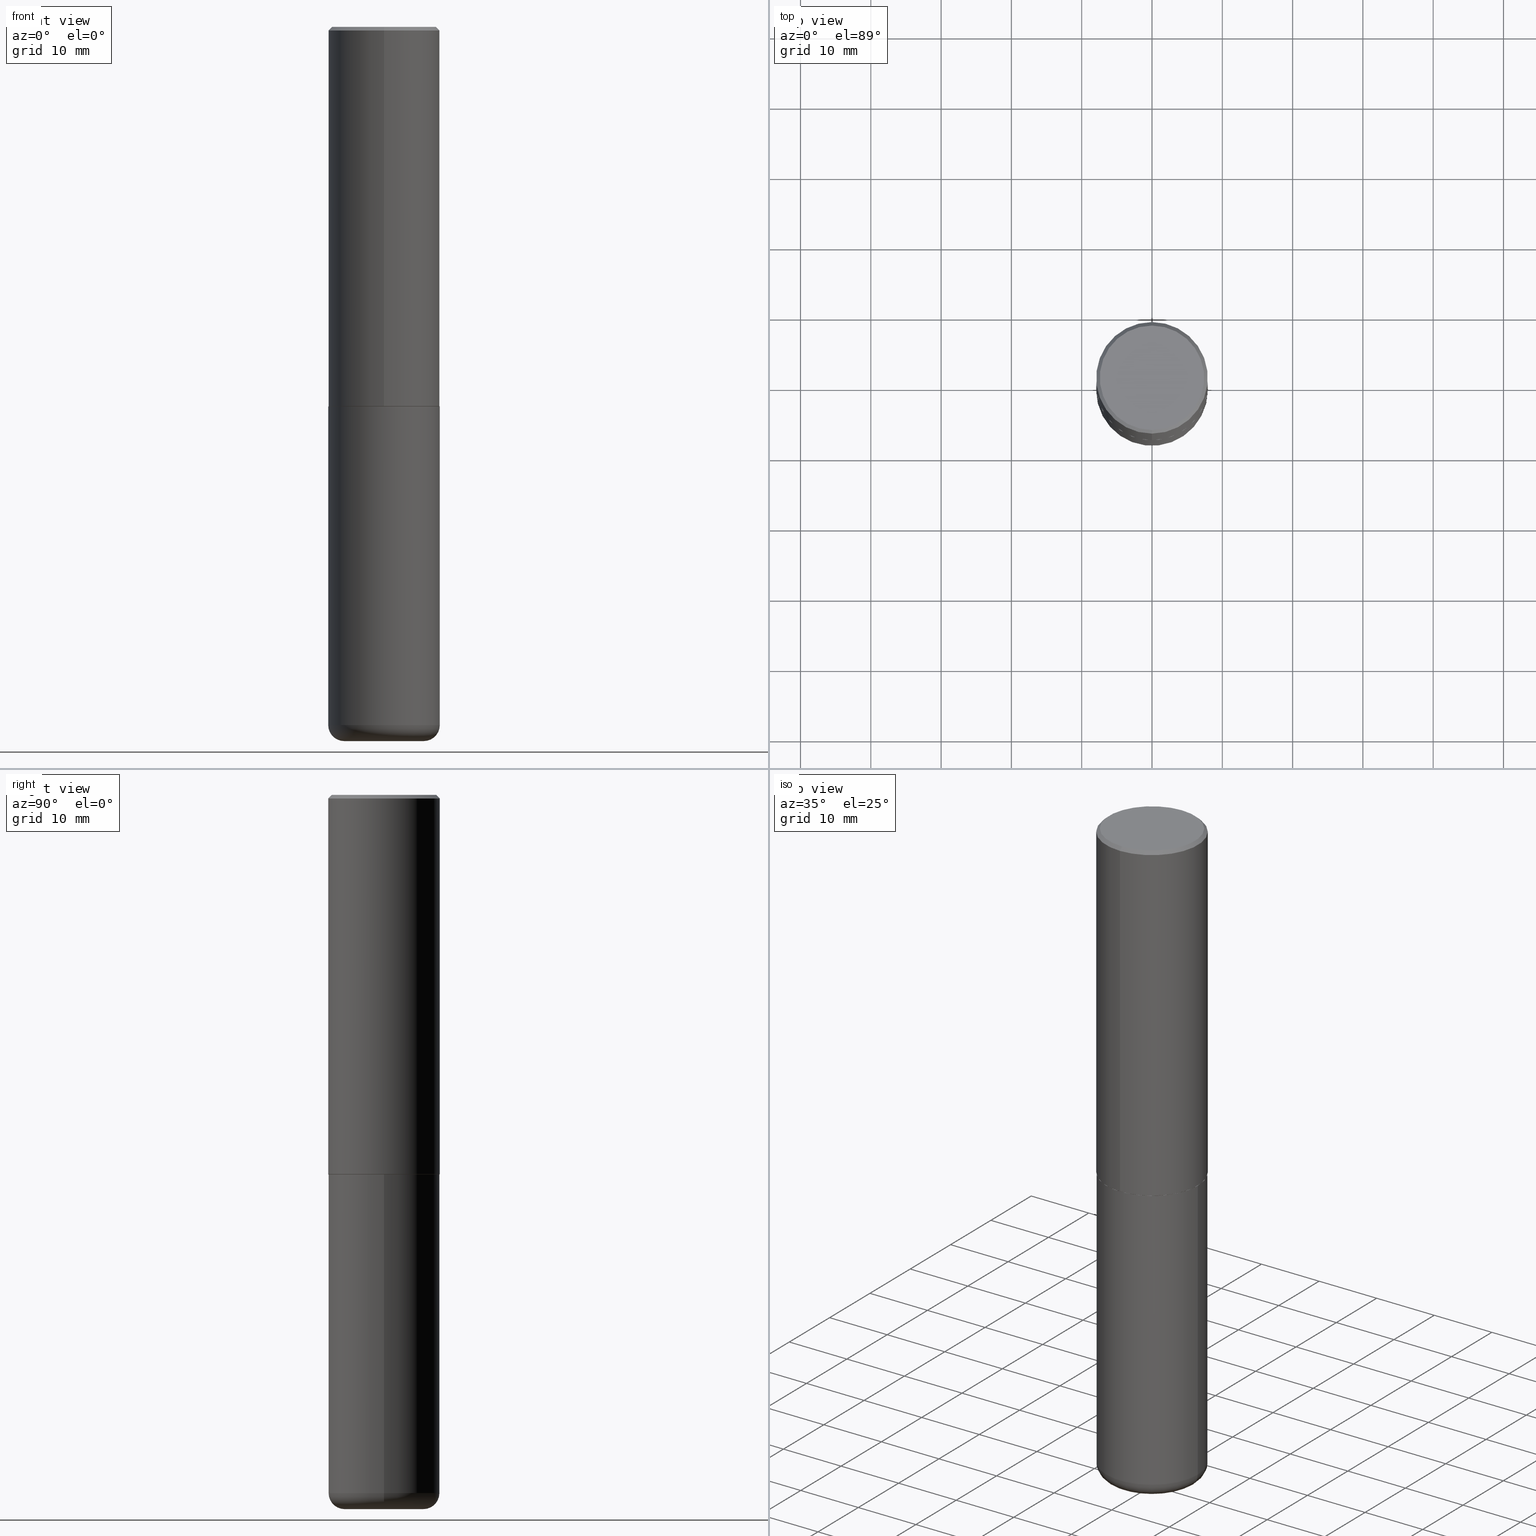
[diagram: canonical four-view strip — front | top / right | iso, engineering-drawing reading convention]
A machine part, canonical four-view strip (front | top / right | iso — engineering-drawing reading convention). The complete STEP part file that produces these views, byte-faithful:
ISO-10303-21;
HEADER;
FILE_DESCRIPTION (( 'STEP AP203' ),
    '1' );
FILE_NAME ('37604.STEP',
    '2024-03-02T05:38:12',
    ( '' ),
    ( '' ),
    'SwSTEP 2.0',
    'SolidWorks 2023',
    '' );
FILE_SCHEMA (( 'CONFIG_CONTROL_DESIGN' ));
ENDSEC;

DATA;
#1 = CARTESIAN_POINT ( 'NONE',  ( -2.150299018297948745E-46, 3.071607443834507134E-32, 8.795209847407834549E-18 ) ) ;
#2 = AXIS2_PLACEMENT_3D ( 'NONE', #319, #168, #28 ) ;
#3 = EDGE_CURVE ( 'NONE', #340, #366, #215, .T. ) ;
#4 = PERSON_AND_ORGANIZATION ( #185, #129 ) ;
#5 = ORIENTED_EDGE ( 'NONE', *, *, #312, .T. ) ;
#6 = CARTESIAN_POINT ( 'NONE',  ( -0.2225000000000000033, -1.190810687696637377E-14, -4.000000000000000000 ) ) ;
#7 = EDGE_CURVE ( 'NONE', #278, #22, #373, .T. ) ;
#8 = AXIS2_PLACEMENT_3D ( 'NONE', #229, #231, #139 ) ;
#9 =( GEOMETRIC_REPRESENTATION_CONTEXT ( 3 ) GLOBAL_UNCERTAINTY_ASSIGNED_CONTEXT ( ( #317 ) ) GLOBAL_UNIT_ASSIGNED_CONTEXT ( ( #188, #416, #346 ) ) REPRESENTATION_CONTEXT ( 'NONE', 'WORKASPACE' ) );
#10 = DATE_AND_TIME ( #367, #51 ) ;
#11 = CARTESIAN_POINT ( 'NONE',  ( 0.2225000000000000033, -1.551963455115777730E-14, -4.000000000000000000 ) ) ;
#12 = FACE_OUTER_BOUND ( 'NONE', #245, .T. ) ;
#13 = DIRECTION ( 'NONE',  ( 1.000000000000000000, -6.982962677686273810E-15, 0.000000000000000000 ) ) ;
#14 = FACE_OUTER_BOUND ( 'NONE', #356, .T. ) ;
#15 = CARTESIAN_POINT ( 'NONE',  ( -2.075300644325887493E-15, -0.2924999999999999822, 1.030311686326234990E-15 ) ) ;
#16 = AXIS2_PLACEMENT_3D ( 'NONE', #44, #294, #108 ) ;
#17 = CARTESIAN_POINT ( 'NONE',  ( 0.000000000000000000, 0.000000000000000000, 0.000000000000000000 ) ) ;
#18 = EDGE_CURVE ( 'NONE', #53, #85, #376, .T. ) ;
#19 = ORIENTED_EDGE ( 'NONE', *, *, #157, .F. ) ;
#20 = ORIENTED_EDGE ( 'NONE', *, *, #18, .F. ) ;
#21 = EDGE_CURVE ( 'NONE', #214, #342, #233, .T. ) ;
#22 = VERTEX_POINT ( 'NONE', #301 ) ;
#23 = CC_DESIGN_APPROVAL ( #246, ( #60 ) ) ;
#24 = DESIGN_CONTEXT ( 'detailed design', #374, 'design' ) ;
#25 = DIRECTION ( 'NONE',  ( 1.000000000000000000, -6.982962677686264344E-15, 4.883557194083112340E-29 ) ) ;
#26 = CARTESIAN_POINT ( 'NONE',  ( 2.042516583223232540E-15, 0.2924999999999999822, -1.017118871555123169E-15 ) ) ;
#27 = VECTOR ( 'NONE', #263, 39.37007874015748143 ) ;
#28 = DIRECTION ( 'NONE',  ( 1.000000000000000000, -6.982962677686265133E-15, 0.000000000000000000 ) ) ;
#29 = CC_DESIGN_APPROVAL ( #66, ( #225 ) ) ;
#30 = DIRECTION ( 'NONE',  ( -6.982962677686265133E-15, -1.000000000000000000, 3.496765431890256920E-15 ) ) ;
#31 = CALENDAR_DATE ( 2024, 2, 3 ) ;
#32 = LINE ( 'NONE', #101, #134 ) ;
#33 = SECURITY_CLASSIFICATION_LEVEL ( 'unclassified' ) ;
#34 = DIRECTION ( 'NONE',  ( -6.982962677686265133E-15, -1.000000000000000000, 3.492364022149836358E-15 ) ) ;
#35 = CC_DESIGN_DATE_AND_TIME_ASSIGNMENT ( #407, #93, ( #414 ) ) ;
#36 = CARTESIAN_POINT ( 'NONE',  ( -2.175192874099219874E-15, -0.3115000000000074376, -2.124999999999998668 ) ) ;
#37 = AXIS2_PLACEMENT_3D ( 'NONE', #86, #153, #50 ) ;
#38 = CARTESIAN_POINT ( 'NONE',  ( 5.195311417418712329E-29, -7.421273547068401324E-15, -2.124999999999999556 ) ) ;
#39 = ORIENTED_EDGE ( 'NONE', *, *, #316, .F. ) ;
#40 = DIRECTION ( 'NONE',  ( 1.000000000000000000, -6.982962677686266711E-15, 4.876176775795936353E-29 ) ) ;
#41 = CARTESIAN_POINT ( 'NONE',  ( 9.781875224740546387E-29, -1.396592535537258233E-14, -4.000000000000000000 ) ) ;
#42 = APPROVAL_PERSON_ORGANIZATION ( #338, #45, #218 ) ;
#43 = FACE_OUTER_BOUND ( 'NONE', #159, .T. ) ;
#44 = CARTESIAN_POINT ( 'NONE',  ( 5.195311417418712329E-29, -7.421273547068401324E-15, -2.124999999999999556 ) ) ;
#45 = APPROVAL ( #91, 'UNSPECIFIED' ) ;
#46 =( LENGTH_UNIT ( ) NAMED_UNIT ( * ) SI_UNIT ( $, .METRE. ) );
#47 = DIRECTION ( 'NONE',  ( -6.982962677686265133E-15, -1.000000000000000000, 3.492364022149836753E-15 ) ) ;
#48 = ORIENTED_EDGE ( 'NONE', *, *, #269, .F. ) ;
#49 = CIRCLE ( 'NONE', #16, 0.3114999999999999991 ) ;
#50 = DIRECTION ( 'NONE',  ( 1.000000000000000000, -6.982962677686264344E-15, 4.883557194083112340E-29 ) ) ;
#51 = LOCAL_TIME ( 0, 38, 12.00000000000000000, #186 ) ;
#52 = ORIENTED_EDGE ( 'NONE', *, *, #202, .F. ) ;
#53 = VERTEX_POINT ( 'NONE', #15 ) ;
#54 = CARTESIAN_POINT ( 'NONE',  ( 9.781875224740546387E-29, -1.396592535537258233E-14, -4.000000000000000000 ) ) ;
#55 = EDGE_CURVE ( 'NONE', #276, #22, #151, .T. ) ;
#56 = ORIENTED_EDGE ( 'NONE', *, *, #193, .T. ) ;
#57 = DIRECTION ( 'NONE',  ( -2.445468806185136597E-29, 3.491481338843145583E-15, 1.000000000000000000 ) ) ;
#58 = EDGE_LOOP ( 'NONE', ( #20, #252, #146, #377 ) ) ;
#59 = AXIS2_PLACEMENT_3D ( 'NONE', #17, #82, #152 ) ;
#60 = PRODUCT_DEFINITION_FORMATION_WITH_SPECIFIED_SOURCE ( 'ANY', '', #330, .NOT_KNOWN. ) ;
#61 = ORIENTED_EDGE ( 'NONE', *, *, #243, .F. ) ;
#62 = DIRECTION ( 'NONE',  ( -2.445468806185136877E-29, 3.491481338843145188E-15, 1.000000000000000000 ) ) ;
#63 = ORIENTED_EDGE ( 'NONE', *, *, #95, .T. ) ;
#64 = FACE_OUTER_BOUND ( 'NONE', #92, .T. ) ;
#65 = CARTESIAN_POINT ( 'NONE',  ( 0.3125000000000000000, -2.182175836776958347E-15, 1.523805242436230075E-29 ) ) ;
#66 = APPROVAL ( #362, 'UNSPECIFIED' ) ;
#67 = ADVANCED_FACE ( 'NONE', ( #14 ), #262, .T. ) ;
#68 = FACE_OUTER_BOUND ( 'NONE', #58, .T. ) ;
#69 = DIRECTION ( 'NONE',  ( -2.444852431726452894E-29, 3.492364022149836358E-15, 1.000000000000000000 ) ) ;
#70 = COORDINATED_UNIVERSAL_TIME_OFFSET ( 5, 0, .BEHIND. ) ;
#71 = ORIENTED_EDGE ( 'NONE', *, *, #21, .T. ) ;
#72 = CARTESIAN_POINT ( 'NONE',  ( 5.195311417418712329E-29, -7.421273547068401324E-15, -2.124999999999999556 ) ) ;
#73 = VECTOR ( 'NONE', #208, 39.37007874015748143 ) ;
#74 = LINE ( 'NONE', #65, #406 ) ;
#75 = COORDINATED_UNIVERSAL_TIME_OFFSET ( 5, 0, .BEHIND. ) ;
#76 = CONICAL_SURFACE ( 'NONE', #124, 0.3125000000000000000, 0.7853981633974471688 ) ;
#77 = PERSON_AND_ORGANIZATION_ROLE ( 'design_owner' ) ;
#78 = COORDINATED_UNIVERSAL_TIME_OFFSET ( 5, 0, .BEHIND. ) ;
#79 = DIRECTION ( 'NONE',  ( -2.444852431726452894E-29, 3.492364022149836358E-15, 1.000000000000000000 ) ) ;
#80 = CIRCLE ( 'NONE', #161, 0.2924999999999999822 ) ;
#81 = CARTESIAN_POINT ( 'NONE',  ( -0.2225000000000000033, -1.207073444781047672E-14, -3.910000000000000142 ) ) ;
#82 = DIRECTION ( 'NONE',  ( -2.445468806185136597E-29, 3.491481338843145583E-15, 1.000000000000000000 ) ) ;
#83 = ORIENTED_EDGE ( 'NONE', *, *, #345, .T. ) ;
#84 = VERTEX_POINT ( 'NONE', #325 ) ;
#85 = VERTEX_POINT ( 'NONE', #213 ) ;
#86 = CARTESIAN_POINT ( 'NONE',  ( 9.561783032183883600E-29, -1.365169203487670064E-14, -3.910000000000000142 ) ) ;
#87 = DIRECTION ( 'NONE',  ( -2.444852431726452894E-29, 3.492364022149836358E-15, 1.000000000000000000 ) ) ;
#88 = TOROIDAL_SURFACE ( 'NONE', #224, 0.2225000000000000033, 0.08999999999999992728 ) ;
#89 = EDGE_CURVE ( 'NONE', #276, #53, #274, .T. ) ;
#90 = PERSON_AND_ORGANIZATION ( #185, #129 ) ;
#91 = APPROVAL_STATUS ( 'not_yet_approved' ) ;
#92 = EDGE_LOOP ( 'NONE', ( #63, #339, #121, #268 ) ) ;
#93 = DATE_TIME_ROLE ( 'creation_date' ) ;
#94 = ORIENTED_EDGE ( 'NONE', *, *, #413, .F. ) ;
#95 = EDGE_CURVE ( 'NONE', #194, #115, #49, .T. ) ;
#96 = DIRECTION ( 'NONE',  ( -2.444852431726452614E-29, 3.492364022149836358E-15, 1.000000000000000000 ) ) ;
#97 = ADVANCED_FACE ( 'NONE', ( #408 ), #409, .T. ) ;
#98 = LOCAL_TIME ( 0, 38, 12.00000000000000000, #75 ) ;
#99 = CARTESIAN_POINT ( 'NONE',  ( 5.195311417418712329E-29, -7.421273547068401324E-15, -2.124999999999999556 ) ) ;
#100 = ORIENTED_EDGE ( 'NONE', *, *, #193, .F. ) ;
#101 = CARTESIAN_POINT ( 'NONE',  ( -2.182175836776959136E-15, -0.3125000000000001665, 1.091363756921824478E-15 ) ) ;
#102 = DATE_TIME_ROLE ( 'classification_date' ) ;
#103 = PERSON_AND_ORGANIZATION ( #185, #129 ) ;
#104 = CARTESIAN_POINT ( 'NONE',  ( 5.196621213143414147E-29, -7.419397845041682046E-15, -2.124999999999999556 ) ) ;
#105 = APPROVAL_DATE_TIME ( #10, #45 ) ;
#106 = PLANE ( 'NONE',  #167 ) ;
#107 = ORIENTED_EDGE ( 'NONE', *, *, #358, .T. ) ;
#108 = DIRECTION ( 'NONE',  ( -6.982962677686265922E-15, -1.000000000000000000, 3.507991003100177457E-15 ) ) ;
#109 = CARTESIAN_POINT ( 'NONE',  ( -2.143905624303602824E-15, -0.3125000000000000555, -0.01999999999999897693 ) ) ;
#110 = CC_DESIGN_PERSON_AND_ORGANIZATION_ASSIGNMENT ( #320, #293, ( #60 ) ) ;
#111 = DIRECTION ( 'NONE',  ( 1.000000000000000000, -6.982962677686269077E-15, 0.000000000000000000 ) ) ;
#112 = DIRECTION ( 'NONE',  ( -2.445468806185136597E-29, 3.491481338843145583E-15, 1.000000000000000000 ) ) ;
#113 = ORIENTED_EDGE ( 'NONE', *, *, #329, .T. ) ;
#114 = AXIS2_PLACEMENT_3D ( 'NONE', #273, #410, #286 ) ;
#115 = VERTEX_POINT ( 'NONE', #370 ) ;
#116 = CYLINDRICAL_SURFACE ( 'NONE', #59, 0.3125000000000000000 ) ;
#117 = DIRECTION ( 'NONE',  ( 1.000000000000000000, -6.982962677686269077E-15, 0.000000000000000000 ) ) ;
#118 = CC_DESIGN_PERSON_AND_ORGANIZATION_ASSIGNMENT ( #103, #77, ( #330 ) ) ;
#119 = APPLICATION_PROTOCOL_DEFINITION ( 'international standard', 'config_control_design', 1994, #302 ) ;
#120 = ORIENTED_EDGE ( 'NONE', *, *, #247, .F. ) ;
#121 = ORIENTED_EDGE ( 'NONE', *, *, #329, .F. ) ;
#122 = AXIS2_PLACEMENT_3D ( 'NONE', #177, #266, #111 ) ;
#123 = CARTESIAN_POINT ( 'NONE',  ( 0.000000000000000000, 0.000000000000000000, 0.000000000000000000 ) ) ;
#124 = AXIS2_PLACEMENT_3D ( 'NONE', #324, #181, #364 ) ;
#125 = ADVANCED_FACE ( 'NONE', ( #300 ), #176, .T. ) ;
#126 = EDGE_LOOP ( 'NONE', ( #313, #259 ) ) ;
#127 = FACE_OUTER_BOUND ( 'NONE', #126, .T. ) ;
#128 = CIRCLE ( 'NONE', #250, 0.3125000000000002776 ) ;
#129 = ORGANIZATION ( 'UNSPECIFIED', 'UNSPECIFIED', '' ) ;
#130 = ADVANCED_FACE ( 'NONE', ( #12 ), #116, .T. ) ;
#131 = CARTESIAN_POINT ( 'NONE',  ( 4.889704863452922148E-31, -6.984728044299695791E-17, -0.02000000000000006981 ) ) ;
#132 = COORDINATED_UNIVERSAL_TIME_OFFSET ( 5, 0, .BEHIND. ) ;
#133 = DIRECTION ( 'NONE',  ( -2.444852431726452894E-29, 3.492364022149836358E-15, 1.000000000000000000 ) ) ;
#134 = VECTOR ( 'NONE', #96, 39.37007874015748143 ) ;
#135 = APPROVAL_PERSON_ORGANIZATION ( #199, #66, #253 ) ;
#136 = CARTESIAN_POINT ( 'NONE',  ( 2.213340621892763743E-15, 0.3114999999999925606, -2.125000000000000888 ) ) ;
#137 = CARTESIAN_POINT ( 'NONE',  ( 5.192866564986985411E-29, -7.417781183046251262E-15, -2.123999999999999666 ) ) ;
#138 = LINE ( 'NONE', #136, #27 ) ;
#139 = DIRECTION ( 'NONE',  ( -1.000000000000000000, 6.982962677686265922E-15, -4.876176775795935793E-29 ) ) ;
#140 = DIRECTION ( 'NONE',  ( 7.105427357601001859E-15, 1.000000000000000000, -3.491481338843145583E-15 ) ) ;
#141 = AXIS2_PLACEMENT_3D ( 'NONE', #232, #169, #13 ) ;
#142 = DIRECTION ( 'NONE',  ( -6.982962677686265922E-15, -1.000000000000000000, 3.496765431890253764E-15 ) ) ;
#143 = FACE_OUTER_BOUND ( 'NONE', #391, .T. ) ;
#144 = CC_DESIGN_DATE_AND_TIME_ASSIGNMENT ( #289, #102, ( #225 ) ) ;
#145 = ADVANCED_FACE ( 'NONE', ( #179 ), #88, .T. ) ;
#146 = ORIENTED_EDGE ( 'NONE', *, *, #55, .T. ) ;
#147 = DIRECTION ( 'NONE',  ( -2.444852431726452894E-29, 3.492364022149836358E-15, 1.000000000000000000 ) ) ;
#148 = ORIENTED_EDGE ( 'NONE', *, *, #279, .F. ) ;
#149 = PRODUCT_DEFINITION_SHAPE ( 'NONE', 'NONE',  #414 ) ;
#150 = DIRECTION ( 'NONE',  ( -2.444852431726452894E-29, 3.492364022149836358E-15, 1.000000000000000000 ) ) ;
#151 = LINE ( 'NONE', #311, #73 ) ;
#152 = DIRECTION ( 'NONE',  ( 1.000000000000000000, -6.982962677686266711E-15, 4.876176775795936353E-29 ) ) ;
#153 = DIRECTION ( 'NONE',  ( -2.445468806185136597E-29, 3.491481338843145583E-15, 1.000000000000000000 ) ) ;
#154 = CYLINDRICAL_SURFACE ( 'NONE', #204, 0.3125000000000001665 ) ;
#155 = ORIENTED_EDGE ( 'NONE', *, *, #345, .F. ) ;
#156 = AXIS2_PLACEMENT_3D ( 'NONE', #54, #57, #309 ) ;
#157 = EDGE_CURVE ( 'NONE', #214, #287, #219, .T. ) ;
#158 = ORIENTED_EDGE ( 'NONE', *, *, #228, .F. ) ;
#159 = EDGE_LOOP ( 'NONE', ( #48, #183, #251, #39 ) ) ;
#160 = CLOSED_SHELL ( 'NONE', ( #130, #145, #205, #97, #67, #125 ) ) ;
#161 = AXIS2_PLACEMENT_3D ( 'NONE', #1, #133, #255 ) ;
#162 = LOCAL_TIME ( 0, 38, 12.00000000000000000, #132 ) ;
#163 = ORIENTED_EDGE ( 'NONE', *, *, #55, .F. ) ;
#164 = DIRECTION ( 'NONE',  ( 6.982962677686265133E-15, 1.000000000000000000, -3.496765431890256920E-15 ) ) ;
#165 = FACE_OUTER_BOUND ( 'NONE', #307, .T. ) ;
#166 = VECTOR ( 'NONE', #180, 39.37007874015748143 ) ;
#167 = AXIS2_PLACEMENT_3D ( 'NONE', #38, #267, #174 ) ;
#168 = DIRECTION ( 'NONE',  ( -2.445468806185136597E-29, 3.491481338843145583E-15, 1.000000000000000000 ) ) ;
#169 = DIRECTION ( 'NONE',  ( -6.982962677686266711E-15, -1.000000000000000000, 3.491481338843145583E-15 ) ) ;
#170 = DIRECTION ( 'NONE',  ( -4.937700262165053702E-15, -0.7071067811866175168, 0.7071067811864775177 ) ) ;
#171 = ADVANCED_FACE ( 'NONE', ( #127 ), #348, .F. ) ;
#172 = DIRECTION ( 'NONE',  ( -2.444852431726452894E-29, 3.492364022149836358E-15, 1.000000000000000000 ) ) ;
#173 = CIRCLE ( 'NONE', #182, 0.3125000000000000000 ) ;
#174 = DIRECTION ( 'NONE',  ( -6.982962677686265922E-15, -1.000000000000000000, 3.492364022149836358E-15 ) ) ;
#175 = AXIS2_PLACEMENT_3D ( 'NONE', #333, #264, #178 ) ;
#176 = PLANE ( 'NONE',  #328 ) ;
#177 = CARTESIAN_POINT ( 'NONE',  ( 9.561783032183883600E-29, -1.365169203487670064E-14, -3.910000000000000142 ) ) ;
#178 = DIRECTION ( 'NONE',  ( -6.982962677686265922E-15, -1.000000000000000000, 3.507991003100177457E-15 ) ) ;
#179 = FACE_OUTER_BOUND ( 'NONE', #272, .T. ) ;
#180 = DIRECTION ( 'NONE',  ( -2.444852431726452614E-29, 3.492364022149836358E-15, 1.000000000000000000 ) ) ;
#181 = DIRECTION ( 'NONE',  ( 2.444852431726452894E-29, -3.492364022149836358E-15, -1.000000000000000000 ) ) ;
#182 = AXIS2_PLACEMENT_3D ( 'NONE', #396, #172, #399 ) ;
#183 = ORIENTED_EDGE ( 'NONE', *, *, #254, .T. ) ;
#184 = ORIENTED_EDGE ( 'NONE', *, *, #21, .F. ) ;
#185 = PERSON ( 'UNSPECIFIED', 'UNSPECIFIED', 'UNSPECIFIED', ('UNSPECIFIED'), ('UNSPECIFIED'), ('UNSPECIFIED') ) ;
#186 = COORDINATED_UNIVERSAL_TIME_OFFSET ( 5, 0, .BEHIND. ) ;
#187 = ORIENTED_EDGE ( 'NONE', *, *, #202, .T. ) ;
#188 =( CONVERSION_BASED_UNIT ( 'INCH', #277 ) LENGTH_UNIT ( ) NAMED_UNIT ( #403 ) );
#189 = EDGE_CURVE ( 'NONE', #366, #340, #314, .T. ) ;
#190 = ORIENTED_EDGE ( 'NONE', *, *, #312, .F. ) ;
#191 = ORIENTED_EDGE ( 'NONE', *, *, #95, .F. ) ;
#192 = CARTESIAN_POINT ( 'NONE',  ( 9.561783032183883600E-29, -1.365169203487670064E-14, -3.910000000000000142 ) ) ;
#193 = EDGE_CURVE ( 'NONE', #318, #85, #32, .T. ) ;
#194 = VERTEX_POINT ( 'NONE', #203 ) ;
#195 = DIRECTION ( 'NONE',  ( -2.444852431726452894E-29, 3.492364022149836358E-15, 1.000000000000000000 ) ) ;
#196 = AXIS2_PLACEMENT_3D ( 'NONE', #351, #315, #164 ) ;
#197 = MANIFOLD_SOLID_BREP ( 'Body-Move/Copy2[1]', #160 ) ;
#198 = ORIENTED_EDGE ( 'NONE', *, *, #228, .T. ) ;
#199 = PERSON_AND_ORGANIZATION ( #185, #129 ) ;
#200 = ORIENTED_EDGE ( 'NONE', *, *, #7, .F. ) ;
#201 = PLANE ( 'NONE',  #8 ) ;
#202 = EDGE_CURVE ( 'NONE', #342, #84, #74, .T. ) ;
#203 = CARTESIAN_POINT ( 'NONE',  ( -2.175192874099219874E-15, -0.3115000000000074376, -2.124999999999998668 ) ) ;
#204 = AXIS2_PLACEMENT_3D ( 'NONE', #349, #69, #34 ) ;
#205 = ADVANCED_FACE ( 'NONE', ( #165 ), #201, .F. ) ;
#206 = CARTESIAN_POINT ( 'NONE',  ( 5.192866564986985411E-29, -7.417781183046251262E-15, -2.123999999999999666 ) ) ;
#207 = ORIENTED_EDGE ( 'NONE', *, *, #189, .F. ) ;
#208 = DIRECTION ( 'NONE',  ( 4.937700262164541731E-15, 0.7071067811865442421, -0.7071067811865507924 ) ) ;
#209 = ORIENTED_EDGE ( 'NONE', *, *, #3, .F. ) ;
#210 = AXIS2_PLACEMENT_3D ( 'NONE', #72, #195, #285 ) ;
#211 = LINE ( 'NONE', #36, #354 ) ;
#212 = LOCAL_TIME ( 0, 38, 12.00000000000000000, #70 ) ;
#213 = CARTESIAN_POINT ( 'NONE',  ( -2.143905624303602824E-15, -0.3125000000000000555, -0.01999999999999897693 ) ) ;
#214 = VERTEX_POINT ( 'NONE', #260 ) ;
#215 = CIRCLE ( 'NONE', #310, 0.2225000000000000033 ) ;
#216 = AXIS2_PLACEMENT_3D ( 'NONE', #99, #226, #355 ) ;
#217 = DIRECTION ( 'NONE',  ( 2.444852431726452333E-29, -3.492364022149836358E-15, -1.000000000000000000 ) ) ;
#218 = APPROVAL_ROLE ( '' ) ;
#219 = LINE ( 'NONE', #385, #280 ) ;
#220 = ADVANCED_FACE ( 'NONE', ( #68 ), #411, .T. ) ;
#221 = ADVANCED_FACE ( 'NONE', ( #64 ), #242, .T. ) ;
#222 = AXIS2_PLACEMENT_3D ( 'NONE', #123, #87, #383 ) ;
#223 = EDGE_LOOP ( 'NONE', ( #19, #71, #187, #155 ) ) ;
#224 = AXIS2_PLACEMENT_3D ( 'NONE', #192, #388, #25 ) ;
#225 = SECURITY_CLASSIFICATION ( '', '', #33 ) ;
#226 = DIRECTION ( 'NONE',  ( -2.444852431726452894E-29, 3.492364022149836358E-15, 1.000000000000000000 ) ) ;
#227 = MECHANICAL_CONTEXT ( 'NONE', #302, 'mechanical' ) ;
#228 = EDGE_CURVE ( 'NONE', #84, #287, #256, .T. ) ;
#229 = CARTESIAN_POINT ( 'NONE',  ( 5.196621213143414147E-29, -7.419397845041682046E-15, -2.124999999999999556 ) ) ;
#230 = SHAPE_DEFINITION_REPRESENTATION ( #149, #238 ) ;
#231 = DIRECTION ( 'NONE',  ( 2.438088387897960049E-29, -3.491481338843145188E-15, -1.000000000000000000 ) ) ;
#232 = CARTESIAN_POINT ( 'NONE',  ( 0.2225000000000000033, -1.520540123066189404E-14, -3.910000000000000142 ) ) ;
#233 = CIRCLE ( 'NONE', #122, 0.3125000000000000000 ) ;
#234 = PERSON_AND_ORGANIZATION ( #185, #129 ) ;
#235 = PRODUCT_RELATED_PRODUCT_CATEGORY ( 'detail', '', ( #330 ) ) ;
#236 = FACE_OUTER_BOUND ( 'NONE', #332, .T. ) ;
#237 = DATE_AND_TIME ( #290, #212 ) ;
#238 = ADVANCED_BREP_SHAPE_REPRESENTATION ( '37604', ( #197, #321, #114 ), #9 ) ;
#239 = FACE_OUTER_BOUND ( 'NONE', #365, .T. ) ;
#240 = ORIENTED_EDGE ( 'NONE', *, *, #254, .F. ) ;
#241 = DIRECTION ( 'NONE',  ( -4.851104656540957964E-15, -0.7071067811865491270, -0.7071067811865459074 ) ) ;
#242 = CONICAL_SURFACE ( 'NONE', #210, 0.3114999999999999991, 0.7853981633975507526 ) ;
#243 = EDGE_CURVE ( 'NONE', #85, #22, #384, .T. ) ;
#244 = CARTESIAN_POINT ( 'NONE',  ( -2.150299018297948745E-46, 3.071607443834507134E-32, 8.795209847407834549E-18 ) ) ;
#245 = EDGE_LOOP ( 'NONE', ( #271, #350, #158, #52 ) ) ;
#246 = APPROVAL ( #248, 'UNSPECIFIED' ) ;
#247 = EDGE_CURVE ( 'NONE', #53, #276, #80, .T. ) ;
#248 = APPROVAL_STATUS ( 'not_yet_approved' ) ;
#249 = ORIENTED_EDGE ( 'NONE', *, *, #7, .T. ) ;
#250 = AXIS2_PLACEMENT_3D ( 'NONE', #206, #150, #404 ) ;
#251 = ORIENTED_EDGE ( 'NONE', *, *, #386, .T. ) ;
#252 = ORIENTED_EDGE ( 'NONE', *, *, #89, .F. ) ;
#253 = APPROVAL_ROLE ( '' ) ;
#254 = EDGE_CURVE ( 'NONE', #115, #194, #344, .T. ) ;
#255 = DIRECTION ( 'NONE',  ( -6.982962677686265133E-15, -1.000000000000000000, 3.492364022149836753E-15 ) ) ;
#256 = CIRCLE ( 'NONE', #2, 0.3125000000000000000 ) ;
#257 = CC_DESIGN_PERSON_AND_ORGANIZATION_ASSIGNMENT ( #4, #394, ( #225 ) ) ;
#258 = CARTESIAN_POINT ( 'NONE',  ( 2.112346210000095838E-15, 0.2924999999999999822, -1.012721266631419361E-15 ) ) ;
#259 = ORIENTED_EDGE ( 'NONE', *, *, #247, .T. ) ;
#260 = CARTESIAN_POINT ( 'NONE',  ( -0.3125000000000000000, -1.143124598562638756E-14, -3.910000000000000142 ) ) ;
#261 = DIRECTION ( 'NONE',  ( -1.000000000000000000, 7.105427357600996337E-15, 0.000000000000000000 ) ) ;
#262 = TOROIDAL_SURFACE ( 'NONE', #37, 0.2225000000000000033, 0.08999999999999992728 ) ;
#263 = DIRECTION ( 'NONE',  ( 5.024295867788576727E-15, 0.7071067811866224018, 0.7071067811864726327 ) ) ;
#264 = DIRECTION ( 'NONE',  ( -2.444852431726452894E-29, 3.492364022149836358E-15, 1.000000000000000000 ) ) ;
#265 = ORIENTED_EDGE ( 'NONE', *, *, #243, .T. ) ;
#266 = DIRECTION ( 'NONE',  ( -2.445468806185136597E-29, 3.491481338843145583E-15, 1.000000000000000000 ) ) ;
#267 = DIRECTION ( 'NONE',  ( -2.444852431726452333E-29, 3.492364022149836358E-15, 1.000000000000000000 ) ) ;
#268 = ORIENTED_EDGE ( 'NONE', *, *, #386, .F. ) ;
#269 = EDGE_CURVE ( 'NONE', #115, #278, #138, .T. ) ;
#270 = CIRCLE ( 'NONE', #141, 0.08999999999999992728 ) ;
#271 = ORIENTED_EDGE ( 'NONE', *, *, #413, .T. ) ;
#272 = EDGE_LOOP ( 'NONE', ( #335, #107, #94, #190 ) ) ;
#273 = CARTESIAN_POINT ( 'NONE',  ( 0.000000000000000000, 0.000000000000000000, 0.000000000000000000 ) ) ;
#274 = CIRCLE ( 'NONE', #398, 0.2924999999999999822 ) ;
#275 = CC_DESIGN_APPROVAL ( #45, ( #414 ) ) ;
#276 = VERTEX_POINT ( 'NONE', #258 ) ;
#277 = LENGTH_MEASURE_WITH_UNIT ( LENGTH_MEASURE( 0.02539999999999999897 ), #46 );
#278 = VERTEX_POINT ( 'NONE', #322 ) ;
#279 = EDGE_CURVE ( 'NONE', #22, #85, #173, .T. ) ;
#280 = VECTOR ( 'NONE', #62, 39.37007874015748143 ) ;
#281 = DIRECTION ( 'NONE',  ( 6.982962677686265922E-15, 1.000000000000000000, -3.492364022149836358E-15 ) ) ;
#282 = APPROVAL_DATE_TIME ( #237, #246 ) ;
#283 = CC_DESIGN_PERSON_AND_ORGANIZATION_ASSIGNMENT ( #353, #418, ( #60 ) ) ;
#284 = ADVANCED_FACE ( 'NONE', ( #143 ), #375, .T. ) ;
#285 = DIRECTION ( 'NONE',  ( -6.982962677686265922E-15, -1.000000000000000000, 3.507991003100177457E-15 ) ) ;
#286 = DIRECTION ( 'NONE',  ( 1.000000000000000000, 0.000000000000000000, 0.000000000000000000 ) ) ;
#287 = VERTEX_POINT ( 'NONE', #415 ) ;
#288 = AXIS2_PLACEMENT_3D ( 'NONE', #26, #217, #281 ) ;
#289 = DATE_AND_TIME ( #31, #162 ) ;
#290 = CALENDAR_DATE ( 2024, 2, 3 ) ;
#291 = DIRECTION ( 'NONE',  ( -2.445468806185136877E-29, 3.491481338843145188E-15, 1.000000000000000000 ) ) ;
#292 = DIRECTION ( 'NONE',  ( 1.000000000000000000, -6.982962677686265133E-15, 0.000000000000000000 ) ) ;
#293 = PERSON_AND_ORGANIZATION_ROLE ( 'creator' ) ;
#294 = DIRECTION ( 'NONE',  ( -2.444852431726452894E-29, 3.492364022149836358E-15, 1.000000000000000000 ) ) ;
#295 = CIRCLE ( 'NONE', #393, 0.08999999999999992728 ) ;
#296 = CONICAL_SURFACE ( 'NONE', #175, 0.3114999999999999991, 0.7853981633975507526 ) ;
#297 = CARTESIAN_POINT ( 'NONE',  ( 9.561783032183883600E-29, -1.365169203487670064E-14, -3.910000000000000142 ) ) ;
#298 = DIRECTION ( 'NONE',  ( 2.438088387897960049E-29, -3.491481338843145188E-15, -1.000000000000000000 ) ) ;
#299 = CC_DESIGN_PERSON_AND_ORGANIZATION_ASSIGNMENT ( #234, #361, ( #414 ) ) ;
#300 = FACE_OUTER_BOUND ( 'NONE', #405, .T. ) ;
#301 = CARTESIAN_POINT ( 'NONE',  ( 2.182175836776958741E-15, 0.3124999999999999445, -0.02000000000000116268 ) ) ;
#302 = APPLICATION_CONTEXT ( 'configuration controlled 3d designs of mechanical parts and assemblies' ) ;
#303 = CARTESIAN_POINT ( 'NONE',  ( 9.781875224740546387E-29, -1.396592535537258233E-14, -4.000000000000000000 ) ) ;
#304 = CIRCLE ( 'NONE', #359, 0.3125000000000002776 ) ;
#305 = AXIS2_PLACEMENT_3D ( 'NONE', #297, #112, #372 ) ;
#306 = ADVANCED_FACE ( 'NONE', ( #343 ), #154, .T. ) ;
#307 = EDGE_LOOP ( 'NONE', ( #198, #83 ) ) ;
#308 = DIRECTION ( 'NONE',  ( -2.445468806185136597E-29, 3.491481338843145583E-15, 1.000000000000000000 ) ) ;
#309 = DIRECTION ( 'NONE',  ( 1.000000000000000000, -6.982962677686269077E-15, 0.000000000000000000 ) ) ;
#310 = AXIS2_PLACEMENT_3D ( 'NONE', #41, #308, #117 ) ;
#311 = CARTESIAN_POINT ( 'NONE',  ( 2.182175836776958741E-15, 0.3124999999999999445, -0.02000000000000116268 ) ) ;
#312 = EDGE_CURVE ( 'NONE', #366, #342, #270, .T. ) ;
#313 = ORIENTED_EDGE ( 'NONE', *, *, #89, .T. ) ;
#314 = CIRCLE ( 'NONE', #156, 0.2225000000000000033 ) ;
#315 = DIRECTION ( 'NONE',  ( 2.444852431726452894E-29, -3.492364022149836358E-15, -1.000000000000000000 ) ) ;
#316 = EDGE_CURVE ( 'NONE', #278, #318, #128, .T. ) ;
#317 = UNCERTAINTY_MEASURE_WITH_UNIT (LENGTH_MEASURE( 1.000000000000000082E-05 ), #188, 'distance_accuracy_value', 'NONE');
#318 = VERTEX_POINT ( 'NONE', #369 ) ;
#319 = CARTESIAN_POINT ( 'NONE',  ( 5.196621213143414147E-29, -7.419397845041682046E-15, -2.124999999999999556 ) ) ;
#320 = PERSON_AND_ORGANIZATION ( #185, #129 ) ;
#321 = MANIFOLD_SOLID_BREP ( 'Body-Move/Copy2[2]', #397 ) ;
#322 = CARTESIAN_POINT ( 'NONE',  ( 2.220446049250340297E-15, 0.3124999999999928391, -2.124000000000000554 ) ) ;
#323 = DATE_AND_TIME ( #389, #98 ) ;
#324 = CARTESIAN_POINT ( 'NONE',  ( 4.889704863452922148E-31, -6.984728044299695791E-17, -0.02000000000000006981 ) ) ;
#325 = CARTESIAN_POINT ( 'NONE',  ( 0.3125000000000000000, -9.601573681818640393E-15, -2.124999999999999556 ) ) ;
#326 = ORIENTED_EDGE ( 'NONE', *, *, #358, .F. ) ;
#327 = DIRECTION ( 'NONE',  ( -2.445468806185136597E-29, 3.491481338843145583E-15, 1.000000000000000000 ) ) ;
#328 = AXIS2_PLACEMENT_3D ( 'NONE', #303, #298, #336 ) ;
#329 = EDGE_CURVE ( 'NONE', #318, #278, #304, .T. ) ;
#330 = PRODUCT ( '37604', '37604', '', ( #227 ) ) ;
#331 = DIRECTION ( 'NONE',  ( -2.445468806185136597E-29, 3.491481338843145583E-15, 1.000000000000000000 ) ) ;
#332 = EDGE_LOOP ( 'NONE', ( #120, #412, #265, #163 ) ) ;
#333 = CARTESIAN_POINT ( 'NONE',  ( 5.195311417418712329E-29, -7.421273547068401324E-15, -2.124999999999999556 ) ) ;
#334 = CARTESIAN_POINT ( 'NONE',  ( 2.220446049250313475E-15, 0.3125000000000001665, -1.091363756921824478E-15 ) ) ;
#335 = ORIENTED_EDGE ( 'NONE', *, *, #189, .T. ) ;
#336 = DIRECTION ( 'NONE',  ( -1.000000000000000000, 6.982962677686265922E-15, -4.876176775795935793E-29 ) ) ;
#337 = AXIS2_PLACEMENT_3D ( 'NONE', #131, #392, #30 ) ;
#338 = PERSON_AND_ORGANIZATION ( #185, #129 ) ;
#339 = ORIENTED_EDGE ( 'NONE', *, *, #269, .T. ) ;
#340 = VERTEX_POINT ( 'NONE', #6 ) ;
#341 = APPROVAL_ROLE ( '' ) ;
#342 = VERTEX_POINT ( 'NONE', #401 ) ;
#343 = FACE_OUTER_BOUND ( 'NONE', #387, .T. ) ;
#344 = CIRCLE ( 'NONE', #216, 0.3114999999999999991 ) ;
#345 = EDGE_CURVE ( 'NONE', #287, #84, #417, .T. ) ;
#346 =( NAMED_UNIT ( * ) SI_UNIT ( $, .STERADIAN. ) SOLID_ANGLE_UNIT ( ) );
#347 = LOCAL_TIME ( 0, 38, 12.00000000000000000, #78 ) ;
#348 = PLANE ( 'NONE',  #288 ) ;
#349 = CARTESIAN_POINT ( 'NONE',  ( 0.000000000000000000, 0.000000000000000000, 0.000000000000000000 ) ) ;
#350 = ORIENTED_EDGE ( 'NONE', *, *, #157, .T. ) ;
#351 = CARTESIAN_POINT ( 'NONE',  ( 4.889704863452922148E-31, -6.984728044299695791E-17, -0.02000000000000006981 ) ) ;
#352 = AXIS2_PLACEMENT_3D ( 'NONE', #402, #327, #40 ) ;
#353 = PERSON_AND_ORGANIZATION ( #185, #129 ) ;
#354 = VECTOR ( 'NONE', #170, 39.37007874015748143 ) ;
#355 = DIRECTION ( 'NONE',  ( -6.982962677686265922E-15, -1.000000000000000000, 3.507991003100177457E-15 ) ) ;
#356 = EDGE_LOOP ( 'NONE', ( #326, #382, #5, #184 ) ) ;
#357 = APPROVAL_DATE_TIME ( #323, #66 ) ;
#358 = EDGE_CURVE ( 'NONE', #340, #214, #295, .T. ) ;
#359 = AXIS2_PLACEMENT_3D ( 'NONE', #137, #79, #142 ) ;
#360 = CC_DESIGN_SECURITY_CLASSIFICATION ( #225, ( #60 ) ) ;
#361 = PERSON_AND_ORGANIZATION_ROLE ( 'creator' ) ;
#362 = APPROVAL_STATUS ( 'not_yet_approved' ) ;
#363 = ADVANCED_FACE ( 'NONE', ( #236 ), #76, .T. ) ;
#364 = DIRECTION ( 'NONE',  ( 6.982962677686265133E-15, 1.000000000000000000, -3.496765431890256920E-15 ) ) ;
#365 = EDGE_LOOP ( 'NONE', ( #191, #240 ) ) ;
#366 = VERTEX_POINT ( 'NONE', #11 ) ;
#367 = CALENDAR_DATE ( 2024, 2, 3 ) ;
#368 = APPLICATION_PROTOCOL_DEFINITION ( 'international standard', 'config_control_design', 1994, #374 ) ;
#369 = CARTESIAN_POINT ( 'NONE',  ( -2.182175836776908254E-15, -0.3125000000000077161, -2.123999999999998334 ) ) ;
#370 = CARTESIAN_POINT ( 'NONE',  ( 2.216893335571564642E-15, 0.3114999999999925606, -2.125000000000000888 ) ) ;
#371 = CIRCLE ( 'NONE', #305, 0.3125000000000000000 ) ;
#372 = DIRECTION ( 'NONE',  ( 1.000000000000000000, -6.982962677686269077E-15, 0.000000000000000000 ) ) ;
#373 = LINE ( 'NONE', #334, #166 ) ;
#374 = APPLICATION_CONTEXT ( 'configuration controlled 3d designs of mechanical parts and assemblies' ) ;
#375 = CYLINDRICAL_SURFACE ( 'NONE', #222, 0.3125000000000001665 ) ;
#376 = LINE ( 'NONE', #109, #390 ) ;
#377 = ORIENTED_EDGE ( 'NONE', *, *, #279, .T. ) ;
#378 = AXIS2_PLACEMENT_3D ( 'NONE', #104, #331, #292 ) ;
#379 = CALENDAR_DATE ( 2024, 2, 3 ) ;
#380 = ORIENTED_EDGE ( 'NONE', *, *, #316, .T. ) ;
#381 = APPROVAL_PERSON_ORGANIZATION ( #90, #246, #341 ) ;
#382 = ORIENTED_EDGE ( 'NONE', *, *, #3, .T. ) ;
#383 = DIRECTION ( 'NONE',  ( -6.982962677686265133E-15, -1.000000000000000000, 3.492364022149836358E-15 ) ) ;
#384 = CIRCLE ( 'NONE', #337, 0.3125000000000000000 ) ;
#385 = CARTESIAN_POINT ( 'NONE',  ( -0.3125000000000000000, 2.220446049250313081E-15, -1.537167215704658232E-29 ) ) ;
#386 = EDGE_CURVE ( 'NONE', #194, #318, #211, .T. ) ;
#387 = EDGE_LOOP ( 'NONE', ( #200, #380, #56, #148 ) ) ;
#388 = DIRECTION ( 'NONE',  ( -2.445468806185136597E-29, 3.491481338843145583E-15, 1.000000000000000000 ) ) ;
#389 = CALENDAR_DATE ( 2024, 2, 3 ) ;
#390 = VECTOR ( 'NONE', #241, 39.37007874015748143 ) ;
#391 = EDGE_LOOP ( 'NONE', ( #113, #249, #61, #100 ) ) ;
#392 = DIRECTION ( 'NONE',  ( -2.444852431726452894E-29, 3.492364022149836358E-15, 1.000000000000000000 ) ) ;
#393 = AXIS2_PLACEMENT_3D ( 'NONE', #81, #140, #261 ) ;
#394 = PERSON_AND_ORGANIZATION_ROLE ( 'classification_officer' ) ;
#395 = ADVANCED_FACE ( 'NONE', ( #43 ), #296, .T. ) ;
#396 = CARTESIAN_POINT ( 'NONE',  ( 4.889704863452922148E-31, -6.984728044299695791E-17, -0.02000000000000006981 ) ) ;
#397 = CLOSED_SHELL ( 'NONE', ( #221, #284, #363, #220, #306, #395, #400, #171 ) ) ;
#398 = AXIS2_PLACEMENT_3D ( 'NONE', #244, #147, #47 ) ;
#399 = DIRECTION ( 'NONE',  ( -6.982962677686265133E-15, -1.000000000000000000, 3.496765431890256920E-15 ) ) ;
#400 = ADVANCED_FACE ( 'NONE', ( #239 ), #106, .F. ) ;
#401 = CARTESIAN_POINT ( 'NONE',  ( 0.3125000000000000000, -1.583386787165366057E-14, -3.910000000000000142 ) ) ;
#402 = CARTESIAN_POINT ( 'NONE',  ( 0.000000000000000000, 0.000000000000000000, 0.000000000000000000 ) ) ;
#403 = DIMENSIONAL_EXPONENTS ( 1.000000000000000000, 0.000000000000000000, 0.000000000000000000, 0.000000000000000000, 0.000000000000000000, 0.000000000000000000, 0.000000000000000000 ) ;
#404 = DIRECTION ( 'NONE',  ( -6.982962677686265922E-15, -1.000000000000000000, 3.496765431890253764E-15 ) ) ;
#405 = EDGE_LOOP ( 'NONE', ( #207, #209 ) ) ;
#406 = VECTOR ( 'NONE', #291, 39.37007874015748143 ) ;
#407 = DATE_AND_TIME ( #379, #347 ) ;
#408 = FACE_OUTER_BOUND ( 'NONE', #223, .T. ) ;
#409 = CYLINDRICAL_SURFACE ( 'NONE', #352, 0.3125000000000000000 ) ;
#410 = DIRECTION ( 'NONE',  ( 0.000000000000000000, 0.000000000000000000, 1.000000000000000000 ) ) ;
#411 = CONICAL_SURFACE ( 'NONE', #196, 0.3125000000000000000, 0.7853981633974471688 ) ;
#412 = ORIENTED_EDGE ( 'NONE', *, *, #18, .T. ) ;
#413 = EDGE_CURVE ( 'NONE', #342, #214, #371, .T. ) ;
#414 = PRODUCT_DEFINITION ( 'UNKNOWN', '', #60, #24 ) ;
#415 = CARTESIAN_POINT ( 'NONE',  ( -0.3125000000000000000, -8.315098890708878264E-15, -2.124999999999999556 ) ) ;
#416 =( NAMED_UNIT ( * ) PLANE_ANGLE_UNIT ( ) SI_UNIT ( $, .RADIAN. ) );
#417 = CIRCLE ( 'NONE', #378, 0.3125000000000000000 ) ;
#418 = PERSON_AND_ORGANIZATION_ROLE ( 'design_supplier' ) ;
ENDSEC;
END-ISO-10303-21;
